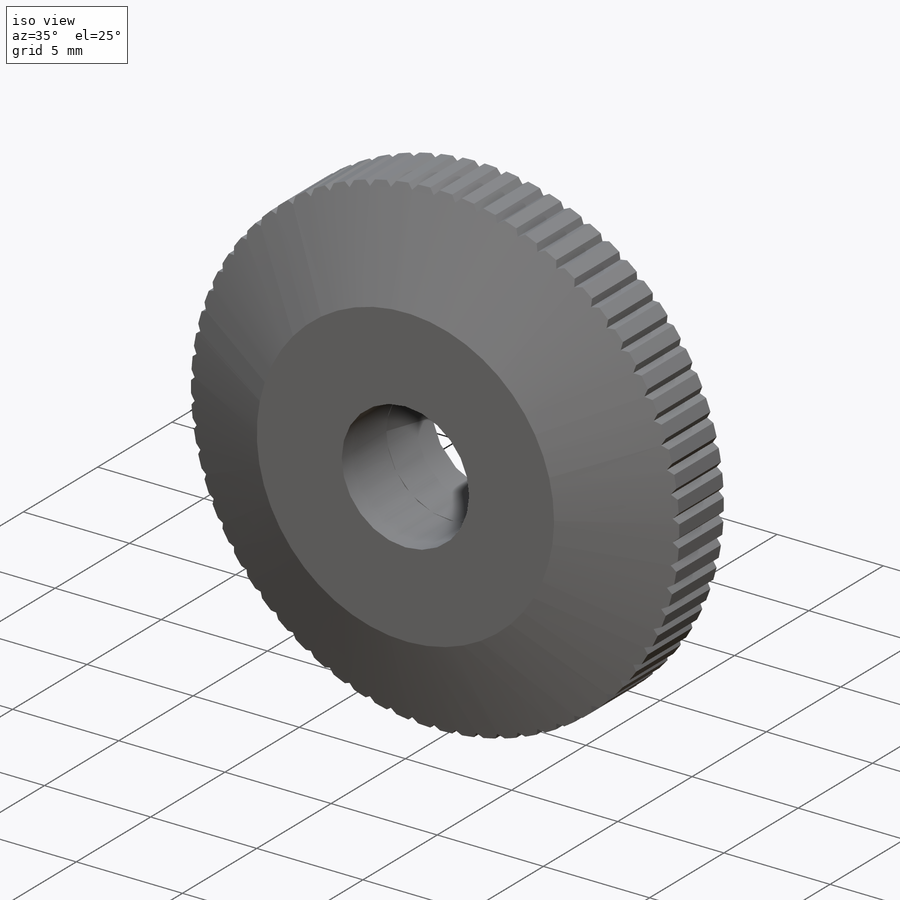
[diagram: iso view]
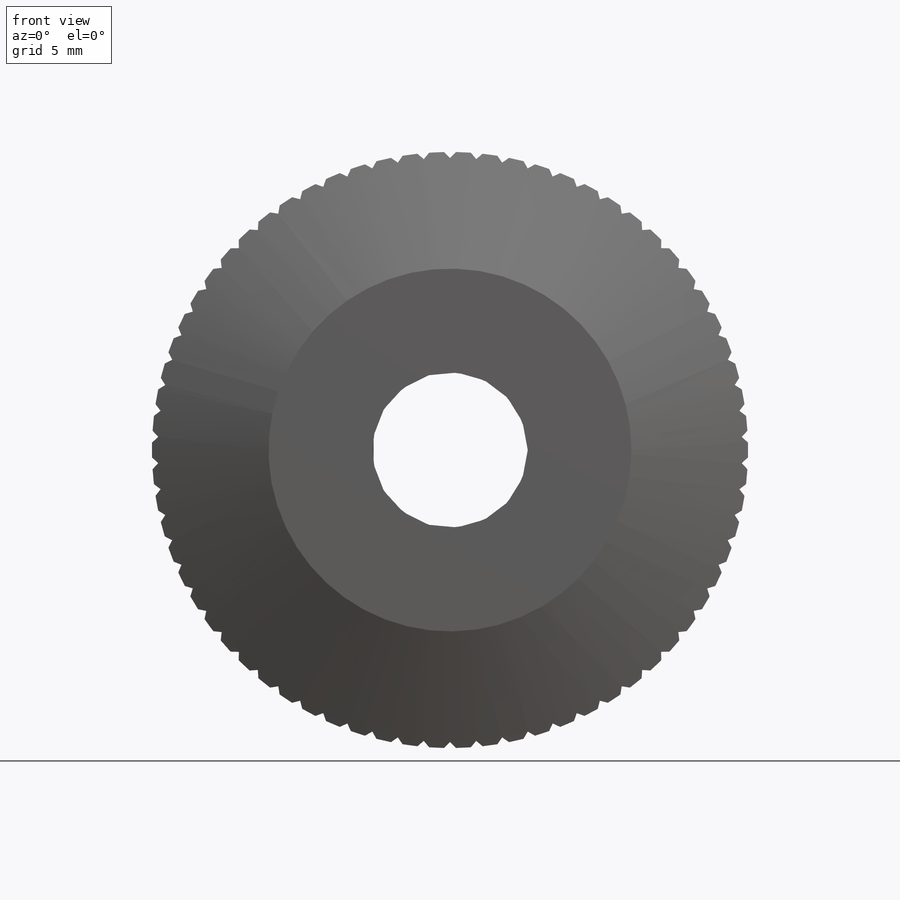
[diagram: front view]
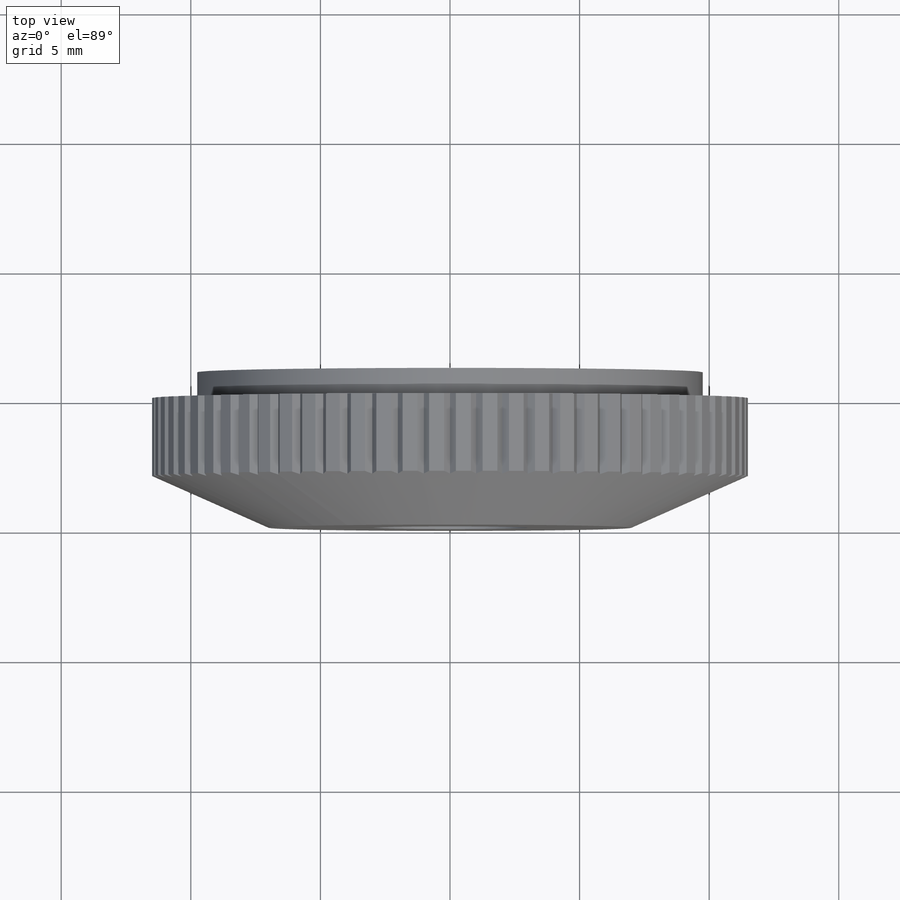
[diagram: top view]
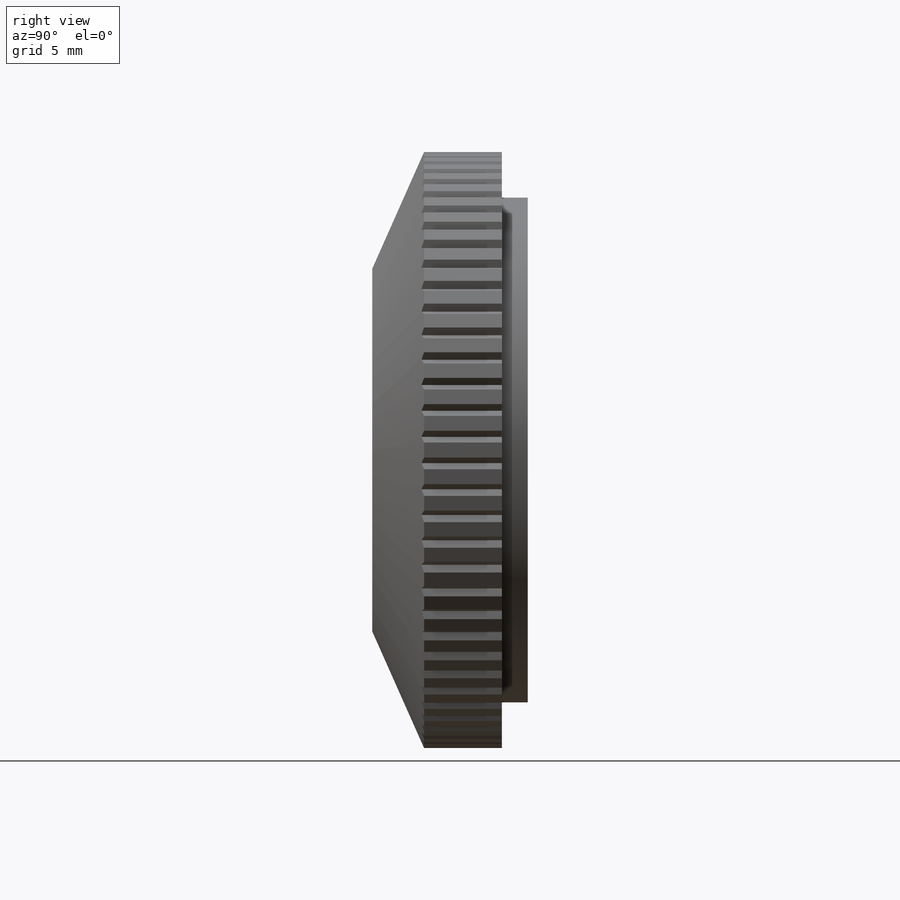
[diagram: right view]
SOLIDWORKS PART (.sldprt)
format: sldprt  version: not decoded by parser v0  size: 496,640 bytes
history: native  units: mm
features: sketch x7, plane x4, cut_extrude x3, extrude x2, material x1 (+8 scaffold rows collapsed)
feature tree (25):
  scaffold x8  (default folders/planes/origin — collapsed)
  material  "Материал <не указан>"
  plane  "Спереди"
  plane  "Сверху"
  plane  "Справа"
  sketch  "Эскиз1"  dims[D1=23.0mm]
  extrude  "Бобышка-Вытянуть1"  Depth=3mm
  plane  "Плоскость1"  Offset=2mm
  sketch  "Эскиз2"  dims[D1=14.0mm]
  sketch  "Эскиз3"
  sketch  "Эскиз4"  dims[D1=20.0mm]
  cut_extrude  "Вырез-Вытянуть1"  Depth=2mm
  sketch  "Эскиз5"  dims[D1=19.5mm]
  extrude  "Бобышка-Вытянуть2"  Depth=3mm
  sketch  "Эскиз6"  dims[c1.D1=~1.016994mm c2.D1=90.0deg c3.D1=~1.429909mm c4.D1=45.0deg c4.D2=11.5mm c4.D3=70.0]
  cut_extrude  "Вырез-Вытянуть2"  [1 undecoded]
  sketch  "Эскиз8"  dims[D1=6.0mm]
  cut_extrude  "Вырез-Вытянуть3"  [1 undecoded]
decode coverage: 9 of 12 modeling features carry decoded parameters
note: ~ marks probable driven/reference dimensions
note: 2 parameter values undecoded
note: suppression state not decoded; provenance and decode notes live in map.json
